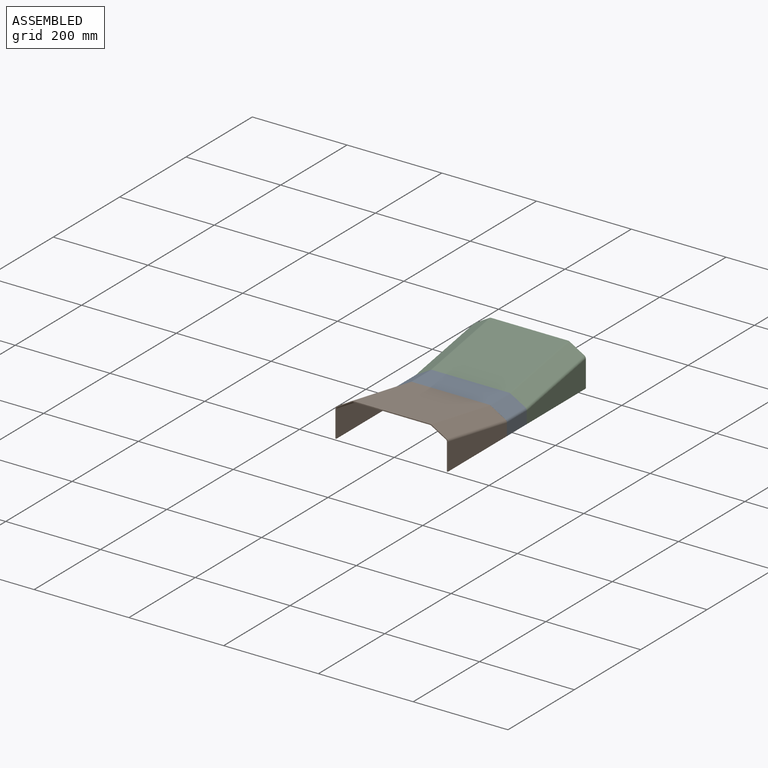
[diagram: assembled view]
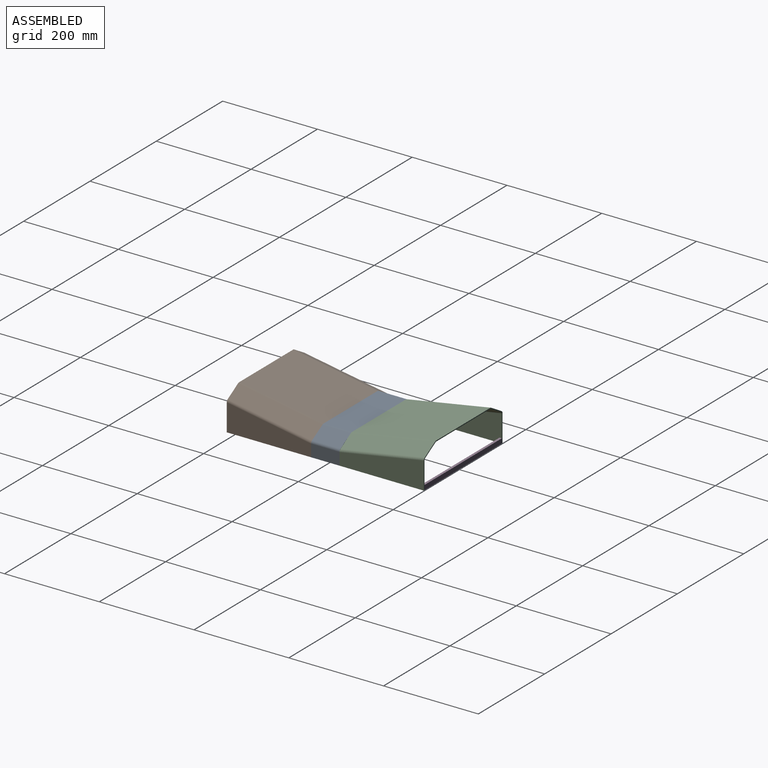
[diagram: assembled view, second angle]
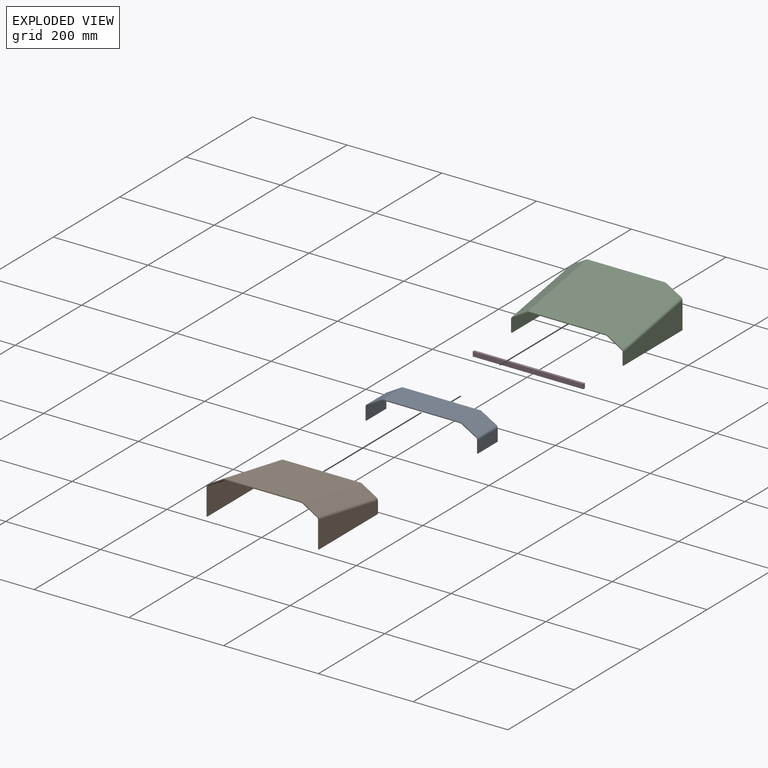
[diagram: exploded view]
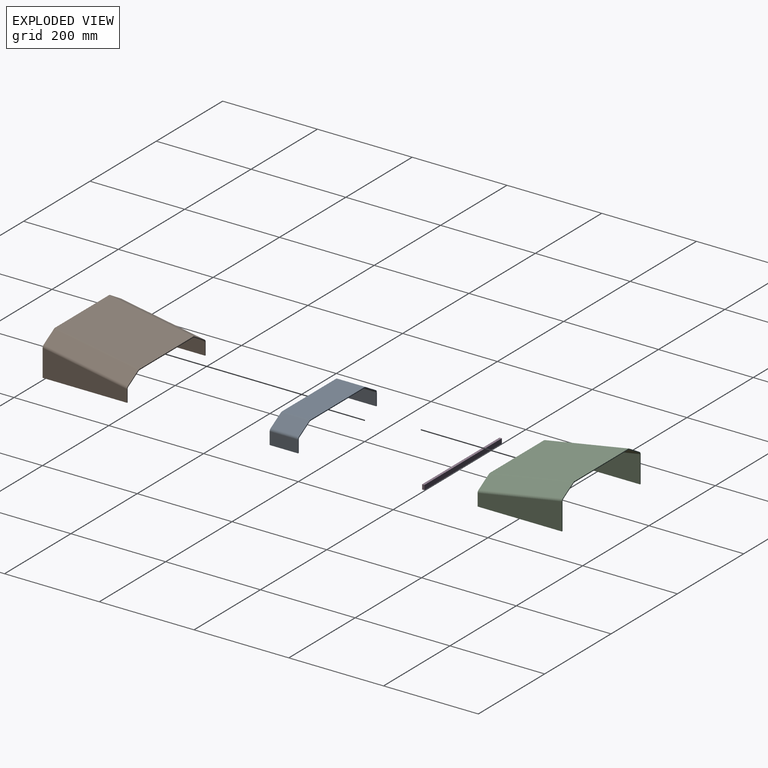
[diagram: exploded view, second angle]
ASSEMBLY  parts=4 mates=3
PART A: 22 faces, bbox 237.3x60x50 mm
  f0: plane 60x2mm, normal (0,0,-1), area 120mm2, adj f2,f3,f5,f14
  f1: plane 60x2mm, normal (0,0,-1), area 120mm2, adj f2,f3,f10,f19
  f2: plane 237.28x50mm, normal (0,-1,0), area 605.2mm2, adj f0,f1,f4,f5,f6,f7,f8,f9
  f3: plane 237.28x50mm, normal (0,1,0), area 605.2mm2, adj f0,f1,f4,f5,f6,f7,f8,f9
  f4: cylinder r=4mm len=60mm, axis (0,1,0), area 251.3mm2, adj f2,f3,f5,f7
  f5: plane 60x25.96mm, normal (1,0,0), area 1557.5mm2, adj f0,f2,f3,f4
  f6: cylinder r=4mm len=60mm, axis (0,-1,0), area 125.7mm2, adj f2,f3,f7,f12
  f7: plane 60x31.25mm, normal (0.5,0,-0.87), area 2165mm2, adj f2,f3,f4,f6
  f8: cylinder r=4mm len=60mm, axis (0,1,0), area 125.7mm2, adj f2,f3,f11,f12
  f9: cylinder r=4mm len=60mm, axis (0,-1,0), area 251.3mm2, adj f2,f3,f10,f11
  f10: plane 60x25.96mm, normal (-1,0,0), area 1557.5mm2, adj f1,f2,f3,f9
  f11: plane 60x31.25mm, normal (-0.5,0,-0.87), area 2165mm2, adj f2,f3,f8,f9
  f12: plane 162.78x60mm, normal (0,0,-1), area 9767.1mm2, adj f2,f3,f6,f8
  f13: cylinder r=6mm len=60mm, axis (0,1,0), area 377mm2, adj f2,f3,f14,f16
  f14: plane 60x25.96mm, normal (-1,0,0), area 1557.5mm2, adj f0,f2,f3,f13
  f15: cylinder r=6mm len=60mm, axis (0,-1,0), area 188.5mm2, adj f2,f3,f16,f21
  f16: plane 60x31.25mm, normal (-0.5,0,0.87), area 2165mm2, adj f2,f3,f13,f15
  f17: cylinder r=6mm len=60mm, axis (0,1,0), area 188.5mm2, adj f2,f3,f20,f21
  f18: cylinder r=6mm len=60mm, axis (0,-1,0), area 377mm2, adj f2,f3,f19,f20
  f19: plane 60x25.96mm, normal (1,0,0), area 1557.5mm2, adj f1,f2,f3,f18
  f20: plane 60x31.25mm, normal (0.5,0,0.87), area 2165mm2, adj f2,f3,f17,f18
  f21: plane 162.78x60mm, normal (0,0,1), area 9767.1mm2, adj f2,f3,f15,f17
PART B: 22 faces, bbox 237.3x189.4x80.1 mm
  f0: plane 175.25x30.9mm, normal (0,-0.17,-0.98), area 355.9mm2, adj f2,f3,f5,f15
  f1: plane 175.25x30.9mm, normal (0,-0.17,-0.98), area 355.9mm2, adj f2,f3,f10,f19
  f2: plane 237.28x49.24mm, normal (0,-0.98,0.17), area 611.4mm2, adj f0,f1,f4,f5,f6,f7,f8,f9
  f3: plane 237.28x80.14mm, normal (0,0.98,-0.17), area 736.9mm2, adj f0,f1,f4,f5,f6,f7,f8,f9
  f4: cylinder r=4mm len=181.31mm, axis (0,1,0), area 756.9mm2, adj f2,f3,f5,f7
  f5: plane 185.14x56.1mm, normal (1,0,0), area 7345.4mm2, adj f0,f2,f3,f4
  f6: cylinder r=4mm len=180.79mm, axis (0,-1,0), area 378.5mm2, adj f2,f3,f7,f12
  f7: plane 183.88x31.25mm, normal (0.5,0,-0.87), area 6520.2mm2, adj f2,f3,f4,f6
  f8: cylinder r=4mm len=180.79mm, axis (0,1,0), area 378.5mm2, adj f2,f3,f11,f12
  f9: cylinder r=4mm len=181.31mm, axis (0,-1,0), area 756.9mm2, adj f2,f3,f10,f11
  f10: plane 185.14x56.1mm, normal (-1,0,0), area 7345.4mm2, adj f1,f2,f3,f9
  f11: plane 183.88x31.25mm, normal (-0.5,0,-0.87), area 6520.2mm2, adj f2,f3,f8,f9
  f12: plane 180.7x162.78mm, normal (0,0,-1), area 29415.2mm2, adj f2,f3,f6,f8
  f13: plane 180.7x162.78mm, normal (0,0,1), area 29415.2mm2, adj f2,f3,f17,f21
  f14: plane 183.88x31.25mm, normal (-0.5,0,0.87), area 6520.2mm2, adj f2,f3,f16,f17
  f15: plane 185.14x56.1mm, normal (-1,0,0), area 7345.4mm2, adj f0,f2,f3,f16
  f16: cylinder r=6mm len=181.62mm, axis (0,1,0), area 1135.4mm2, adj f2,f3,f14,f15
  f17: cylinder r=6mm len=180.84mm, axis (0,-1,0), area 567.7mm2, adj f2,f3,f13,f14
  f18: plane 183.88x31.25mm, normal (0.5,0,0.87), area 6520.2mm2, adj f2,f3,f20,f21
  f19: plane 185.14x56.1mm, normal (1,0,0), area 7345.4mm2, adj f1,f2,f3,f20
  f20: cylinder r=6mm len=181.62mm, axis (0,-1,0), area 1135.4mm2, adj f2,f3,f18,f19
  f21: cylinder r=6mm len=180.84mm, axis (0,1,0), area 567.7mm2, adj f2,f3,f13,f18
PART C: same geometry as B
PART D: 6 faces, bbox 233.3x6.7x10.7 mm
  f0: plane 233.28x4.92mm, normal (0,-0.17,-0.98), area 1166.4mm2, adj f1,f3,f4,f5
  f1: plane 10.72x6.66mm, normal (-1,0,0), area 50mm2, adj f0,f2,f4,f5
  f2: plane 233.28x4.92mm, normal (0,0.17,0.98), area 1166.4mm2, adj f1,f3,f4,f5
  f3: plane 10.72x6.66mm, normal (1,0,0), area 50mm2, adj f0,f2,f4,f5
  f4: plane 233.28x9.85mm, normal (0,-0.98,0.17), area 2332.8mm2, adj f0,f1,f2,f3
  f5: plane 233.28x9.85mm, normal (0,0.98,-0.17), area 2332.8mm2, adj f0,f1,f2,f3
PLACE A at identity fixed
PLACE B rot(axis=(0,0.09,1),180deg) t=(0,41.05,-12.56)mm
PLACE C rot(axis=(1,0,0),10deg) t=(0,-41.05,-12.56)mm
PLACE D rot(axis=(1,0,0),10deg) t=(0,-41.05,-12.56)mm
MATE fastened D.f3 <-> C.f10  axis (1,0,0) through (116.64,207.95,-48)mm
MATE fastened B.f2 <-> A.f2  axis (0,1,0) through (0,-30,2)mm
MATE fastened C.f2 <-> A.f3  axis (0,-1,0) through (0,30,2)mm
